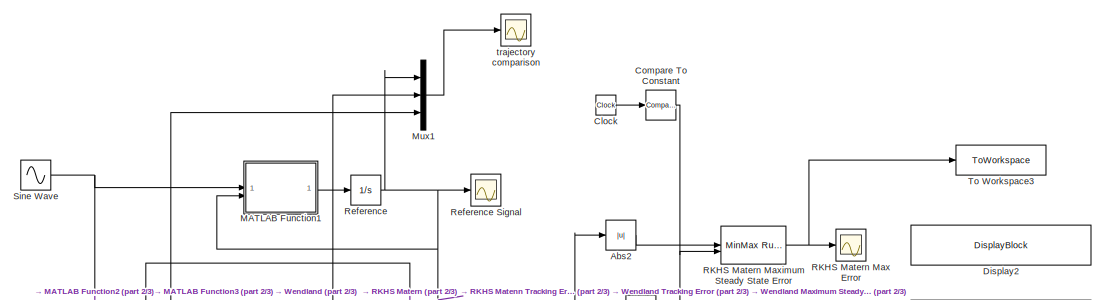
[diagram: root canvas - part 1/3, full width, top band]
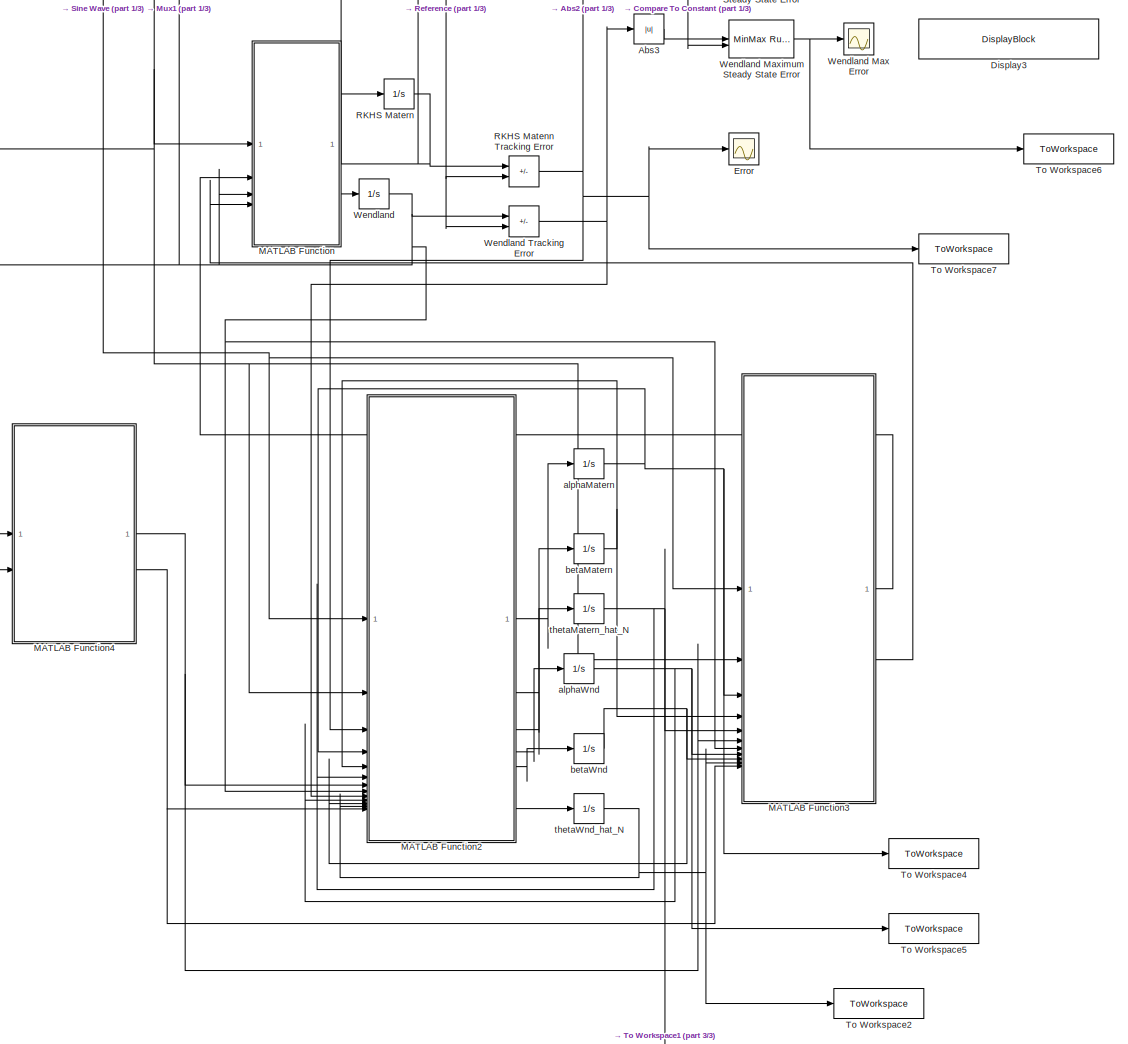
[diagram: root canvas - part 2/3, most of the canvas]
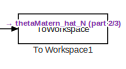
[diagram: root canvas - part 3/3, bottom right region]
MODEL slx_f2626c847e4a
KIND model
CONFIG AbsTol = auto
CONFIG EnableMultiTasking = off
CONFIG FixedStep = auto
CONFIG MaxStep = auto
CONFIG MinStep = auto
CONFIG RelTol = 1e-3
CONFIG SampleTimeConstraint = Unconstrained
CONFIG SolverName = ode45
CONFIG StartTime = 0.0
CONFIG StopTime = 30
BLOCK [Abs] Abs2
  SaturateOnIntegerOverflow = off
BLOCK [Abs] Abs3
  SaturateOnIntegerOverflow = off
BLOCK [Clock] Clock
  DisplayTime = on
BLOCK [Reference] Compare To Constant  REF=simulink/Logic and Bit
Operations/Compare
To Constant
  SourceBlock = simulink/Logic and Bit\nOperations/Compare\nTo Constant
  SourceType = Compare To Constant
BLOCK [DisplayBlock] Display2
  LabelPosition = Hide
  Transparency = 1
BLOCK [DisplayBlock] Display3
  LabelPosition = Hide
  Transparency = 1
BLOCK [Scope] Error
  Floating = off
  NumInputPorts = 1
  ScopeSpecificationString = Simulink.scopes.TimeScopeBlockCfg('CurrentConfiguration', extmgr.ConfigurationSet(extmgr.Configuration('Core','General UI',true,'FigureColor',[1 1 1]),extmgr.Configuration('Core','Source UI',true),extmgr.Configuration('Sources','WiredSimulink',true,'DataLoggingVariableName','ScopeData1'),extmgr.Configuration('Visuals','Time Domain',true,'SerializedDisplays',{struct('MinYLimReal','-2.41007','MaxYLi...<+1990ch>
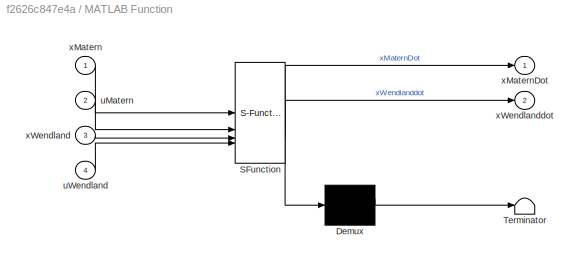
BLOCK [SubSystem] MATLAB Function
  ErrorFcn = Stateflow.Translate.translate
  PermitHierarchicalResolution = ExplicitOnly
  SFBlockType = MATLAB Function
  TreatAsAtomicUnit = on
BLOCK [Demux] MATLAB Function/ Demux 
  Outputs = 1
BLOCK [S-Function] MATLAB Function/ SFunction 
  EnableBusSupport = on
  FunctionName = sf_sfun
  Parameters = astar,bstar
  PortCounts = [4 3]
  SFcnIsStateOwnerBlock = off
  SFunctionDeploymentMode = off
  Tag = Stateflow S-Function 2
BLOCK [Terminator] MATLAB Function/ Terminator 
BLOCK [Inport] MATLAB Function/uMatern
  Port = 2
BLOCK [Inport] MATLAB Function/uWendland
  Port = 4
BLOCK [Inport] MATLAB Function/xMatern
BLOCK [Outport] MATLAB Function/xMaternDot
BLOCK [Inport] MATLAB Function/xWendland
  Port = 3
BLOCK [Outport] MATLAB Function/xWendlanddot
  Port = 2
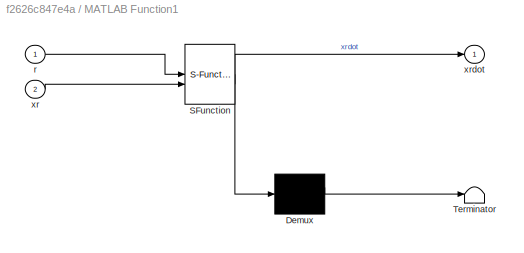
BLOCK [SubSystem] MATLAB Function1
  ErrorFcn = Stateflow.Translate.translate
  PermitHierarchicalResolution = ExplicitOnly
  SFBlockType = MATLAB Function
  TreatAsAtomicUnit = on
BLOCK [Demux] MATLAB Function1/ Demux 
  Outputs = 1
BLOCK [S-Function] MATLAB Function1/ SFunction 
  EnableBusSupport = on
  FunctionName = sf_sfun
  Parameters = ar,br
  PortCounts = [2 2]
  SFcnIsStateOwnerBlock = off
  SFunctionDeploymentMode = off
  Tag = Stateflow S-Function 1
BLOCK [Terminator] MATLAB Function1/ Terminator 
BLOCK [Inport] MATLAB Function1/r
BLOCK [Inport] MATLAB Function1/xr
  Port = 2
BLOCK [Outport] MATLAB Function1/xrdot
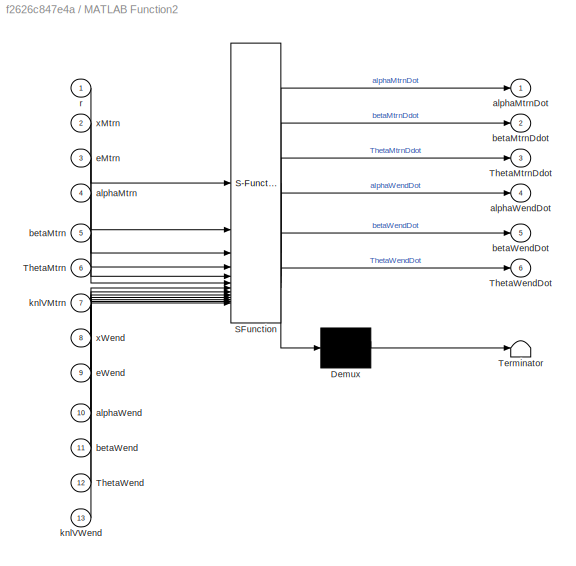
BLOCK [SubSystem] MATLAB Function2
  ErrorFcn = Stateflow.Translate.translate
  PermitHierarchicalResolution = ExplicitOnly
  SFBlockType = MATLAB Function
  TreatAsAtomicUnit = on
BLOCK [Demux] MATLAB Function2/ Demux 
  Outputs = 1
BLOCK [S-Function] MATLAB Function2/ SFunction 
  EnableBusSupport = on
  FunctionName = sf_sfun
  Parameters = ga,gb,gf,invKMtrn,invKWend,sigma
  PortCounts = [13 7]
  SFcnIsStateOwnerBlock = off
  SFunctionDeploymentMode = off
  Tag = Stateflow S-Function 3
BLOCK [Terminator] MATLAB Function2/ Terminator 
BLOCK [Inport] MATLAB Function2/ThetaMtrn
  Port = 6
BLOCK [Outport] MATLAB Function2/ThetaMtrnDdot
  Port = 3
BLOCK [Inport] MATLAB Function2/ThetaWend
  Port = 12
BLOCK [Outport] MATLAB Function2/ThetaWendDot
  Port = 6
BLOCK [Inport] MATLAB Function2/alphaMtrn
  Port = 4
BLOCK [Outport] MATLAB Function2/alphaMtrnDot
BLOCK [Inport] MATLAB Function2/alphaWend
  Port = 10
BLOCK [Outport] MATLAB Function2/alphaWendDot
  Port = 4
BLOCK [Inport] MATLAB Function2/betaMtrn
  Port = 5
BLOCK [Outport] MATLAB Function2/betaMtrnDdot
  Port = 2
BLOCK [Inport] MATLAB Function2/betaWend
  Port = 11
BLOCK [Outport] MATLAB Function2/betaWendDot
  Port = 5
BLOCK [Inport] MATLAB Function2/eMtrn
  Port = 3
BLOCK [Inport] MATLAB Function2/eWend
  Port = 9
BLOCK [Inport] MATLAB Function2/knlVMtrn
  Port = 7
BLOCK [Inport] MATLAB Function2/knlVWend
  Port = 13
BLOCK [Inport] MATLAB Function2/r
BLOCK [Inport] MATLAB Function2/xMtrn
  Port = 2
BLOCK [Inport] MATLAB Function2/xWend
  Port = 8
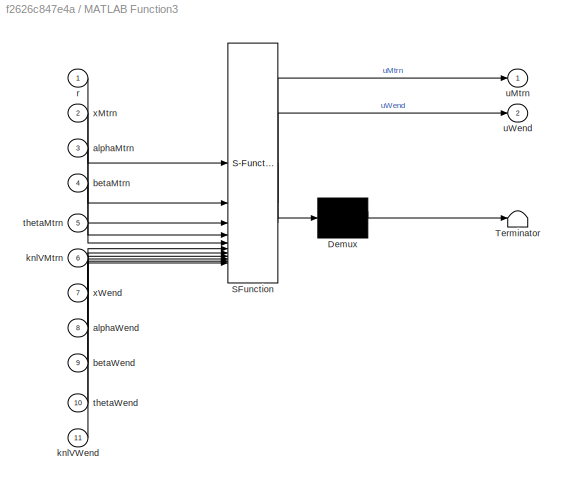
BLOCK [SubSystem] MATLAB Function3
  ErrorFcn = Stateflow.Translate.translate
  PermitHierarchicalResolution = ExplicitOnly
  SFBlockType = MATLAB Function
  TreatAsAtomicUnit = on
BLOCK [Demux] MATLAB Function3/ Demux 
  Outputs = 1
BLOCK [S-Function] MATLAB Function3/ SFunction 
  EnableBusSupport = on
  FunctionName = sf_sfun
  PortCounts = [11 3]
  SFcnIsStateOwnerBlock = off
  SFunctionDeploymentMode = off
  Tag = Stateflow S-Function 4
BLOCK [Terminator] MATLAB Function3/ Terminator 
BLOCK [Inport] MATLAB Function3/alphaMtrn
  Port = 3
BLOCK [Inport] MATLAB Function3/alphaWend
  Port = 8
BLOCK [Inport] MATLAB Function3/betaMtrn
  Port = 4
BLOCK [Inport] MATLAB Function3/betaWend
  Port = 9
BLOCK [Inport] MATLAB Function3/knlVMtrn
  Port = 6
BLOCK [Inport] MATLAB Function3/knlVWend
  Port = 11
BLOCK [Inport] MATLAB Function3/r
BLOCK [Inport] MATLAB Function3/thetaMtrn
  Port = 5
BLOCK [Inport] MATLAB Function3/thetaWend
  Port = 10
BLOCK [Outport] MATLAB Function3/uMtrn
BLOCK [Outport] MATLAB Function3/uWend
  Port = 2
BLOCK [Inport] MATLAB Function3/xMtrn
  Port = 2
BLOCK [Inport] MATLAB Function3/xWend
  Port = 7
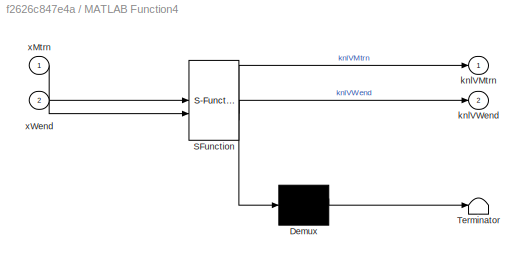
BLOCK [SubSystem] MATLAB Function4
  ErrorFcn = Stateflow.Translate.translate
  PermitHierarchicalResolution = ExplicitOnly
  SFBlockType = MATLAB Function
  TreatAsAtomicUnit = on
BLOCK [Demux] MATLAB Function4/ Demux 
  Outputs = 1
BLOCK [S-Function] MATLAB Function4/ SFunction 
  EnableBusSupport = on
  FunctionName = sf_sfun
  Parameters = centers,hyperMtrn,hyperWend,nu,sig
  PortCounts = [2 3]
  SFcnIsStateOwnerBlock = off
  SFunctionDeploymentMode = off
  Tag = Stateflow S-Function 5
BLOCK [Terminator] MATLAB Function4/ Terminator 
BLOCK [Outport] MATLAB Function4/knlVMtrn
BLOCK [Outport] MATLAB Function4/knlVWend
  Port = 2
BLOCK [Inport] MATLAB Function4/xMtrn
BLOCK [Inport] MATLAB Function4/xWend
  Port = 2
BLOCK [Mux] Mux1
  DisplayOption = bar
  Inputs = 3
BLOCK [Sum] RKHS Matenn Tracking Error
  IconShape = rectangular
  Inputs = +-
BLOCK [Integrator] RKHS Matern
  InitialCondition = x0
BLOCK [Scope] RKHS Matern Max Error
  Floating = off
  NumInputPorts = 1
  ScopeSpecificationString = Simulink.scopes.TimeScopeBlockCfg('CurrentConfiguration', extmgr.ConfigurationSet(extmgr.Configuration('Core','General UI',true),extmgr.Configuration('Core','Source UI',true),extmgr.Configuration('Sources','WiredSimulink',true,'DataLoggingVariableName','ScopeData3'),extmgr.Configuration('Visuals','Time Domain',true,'SerializedDisplays',{struct('MinYLimReal','-1.53696','MaxYLimReal','2.36845','YLab...<+1506ch>
BLOCK [Reference] RKHS Matern Maximum Steady State Error  REF=simulink/Math
Operations/MinMax
Running
Resettable
  SourceBlock = simulink/Math\nOperations/MinMax\nRunning\nResettable
  SourceType = MinMax Running Resettable
BLOCK [Integrator] Reference
  InitialCondition = xr0
BLOCK [Scope] Reference Signal
  Floating = off
  NumInputPorts = 1
  ScopeSpecificationString = Simulink.scopes.TimeScopeBlockCfg('CurrentConfiguration', extmgr.ConfigurationSet(extmgr.Configuration('Core','General UI',true,'FigureColor',[1 1 1]),extmgr.Configuration('Core','Source UI',true),extmgr.Configuration('Sources','WiredSimulink',true,'DataLoggingVariableName','ScopeData1'),extmgr.Configuration('Visuals','Time Domain',true,'SerializedDisplays',{struct('MinYLimReal','-12.43782','MaxYL...<+1948ch>
BLOCK [Sin] Sine Wave
  Amplitude = 10
  Frequency = 2*pi
  SampleTime = 0
BLOCK [ToWorkspace] To Workspace1
  FixptAsFi = on
  MaxDataPoints = inf
  SampleTime = -1
  SaveFormat = Timeseries
  VariableName = ThetaMatern
BLOCK [ToWorkspace] To Workspace2
  FixptAsFi = on
  MaxDataPoints = inf
  SampleTime = -1
  SaveFormat = Timeseries
  VariableName = ThetaWendland
BLOCK [ToWorkspace] To Workspace3
  FixptAsFi = on
  MaxDataPoints = inf
  SampleTime = -1
  SaveFormat = Timeseries
  VariableName = ssErrorMatern
BLOCK [ToWorkspace] To Workspace4
  FixptAsFi = on
  MaxDataPoints = inf
  SampleTime = -1
  SaveFormat = Timeseries
  VariableName = AlphaMatern
BLOCK [ToWorkspace] To Workspace5
  FixptAsFi = on
  MaxDataPoints = inf
  SampleTime = -1
  SaveFormat = Timeseries
  VariableName = AlphaWendland
BLOCK [ToWorkspace] To Workspace6
  FixptAsFi = on
  MaxDataPoints = inf
  SampleTime = -1
  SaveFormat = Timeseries
  VariableName = ssErrorWendland
BLOCK [ToWorkspace] To Workspace7
  FixptAsFi = on
  MaxDataPoints = inf
  SampleTime = -1
  SaveFormat = Timeseries
  VariableName = Matern_error
BLOCK [Integrator] Wendland
  InitialCondition = x0
BLOCK [Scope] Wendland Max Error
  Floating = off
  NumInputPorts = 1
  ScopeSpecificationString = Simulink.scopes.TimeScopeBlockCfg('CurrentConfiguration', extmgr.ConfigurationSet(extmgr.Configuration('Core','General UI',true),extmgr.Configuration('Core','Source UI',true),extmgr.Configuration('Sources','WiredSimulink',true,'DataLoggingVariableName','ScopeData4'),extmgr.Configuration('Visuals','Time Domain',true,'SerializedDisplays',{struct('MinYLimReal','-1.53696','MaxYLimReal','2.36845','YLab...<+1506ch>
BLOCK [Reference] Wendland Maximum Steady State Error  REF=simulink/Math
Operations/MinMax
Running
Resettable
  SourceBlock = simulink/Math\nOperations/MinMax\nRunning\nResettable
  SourceType = MinMax Running Resettable
BLOCK [Sum] Wendland Tracking Error
  IconShape = rectangular
  Inputs = +-
BLOCK [Integrator] alphaMatern
  InitialCondition = alpha0
BLOCK [Integrator] alphaWnd
  InitialCondition = alpha0
BLOCK [Integrator] betaMatern
  InitialCondition = beta0
BLOCK [Integrator] betaWnd
  InitialCondition = beta0
BLOCK [Integrator] thetaMatern_hat_N
BLOCK [Integrator] thetaWnd_hat_N
BLOCK [Scope] trajectory comparison
  Floating = off
  NumInputPorts = 1
  ScopeSpecificationString = Simulink.scopes.TimeScopeBlockCfg('CurrentConfiguration', extmgr.ConfigurationSet(extmgr.Configuration('Core','General UI',true,'FigureColor',[1 1 1]),extmgr.Configuration('Core','Source UI',true),extmgr.Configuration('Sources','WiredSimulink',true,'DataLoggingVariableName','ScopeData1'),extmgr.Configuration('Visuals','Time Domain',true,'SerializedDisplays',{struct('MinYLimReal','-12.94159','MaxYL...<+2040ch>
LINE Abs2:1 -> RKHS Matern Maximum Steady State Error:1
LINE Abs3:1 -> Wendland Maximum Steady State Error:1
LINE Clock:1 -> Compare To Constant:1
NET Compare To Constant:1 -> RKHS Matern Maximum Steady State Error:2, Wendland Maximum Steady State Error:2
LINE MATLAB Function1:1 -> Reference:1
LINE MATLAB Function2:1 -> alphaMatern:1
LINE MATLAB Function2:2 -> betaMatern:1
LINE MATLAB Function2:3 -> thetaMatern_hat_N:1
LINE MATLAB Function2:4 -> alphaWnd:1
LINE MATLAB Function2:5 -> betaWnd:1
LINE MATLAB Function2:6 -> thetaWnd_hat_N:1
LINE MATLAB Function3:1 -> MATLAB Function:2
LINE MATLAB Function3:2 -> MATLAB Function:4
NET MATLAB Function4:1 -> MATLAB Function2:7, MATLAB Function3:6
NET MATLAB Function4:2 -> MATLAB Function2:13, MATLAB Function3:11
LINE MATLAB Function:1 -> RKHS Matern:1
LINE MATLAB Function:2 -> Wendland:1
LINE Mux1:1 -> trajectory comparison:1
NET RKHS Matenn Tracking Error:1 -> Abs2:1, Error:1, MATLAB Function2:3, To Workspace7:1
NET RKHS Matern Maximum Steady State Error:1 -> RKHS Matern Max Error:1, To Workspace3:1
NET RKHS Matern:1 -> MATLAB Function2:2, MATLAB Function3:2, MATLAB Function4:1, MATLAB Function:1, Mux1:2, RKHS Matenn Tracking Error:1
NET Reference:1 -> MATLAB Function1:2, Mux1:1, RKHS Matenn Tracking Error:2, Reference Signal:1, Wendland Tracking Error:2
NET Sine Wave:1 -> MATLAB Function1:1, MATLAB Function2:1, MATLAB Function3:1
NET Wendland Maximum Steady State Error:1 -> To Workspace6:1, Wendland Max Error:1
NET Wendland Tracking Error:1 -> Abs3:1, MATLAB Function2:9
NET Wendland:1 -> MATLAB Function2:8, MATLAB Function3:7, MATLAB Function4:2, MATLAB Function:3, Mux1:3, Wendland Tracking Error:1
NET alphaMatern:1 -> MATLAB Function2:4, MATLAB Function3:3, To Workspace4:1
NET alphaWnd:1 -> MATLAB Function2:10, MATLAB Function3:8, To Workspace5:1
NET betaMatern:1 -> MATLAB Function2:5, MATLAB Function3:4
NET betaWnd:1 -> MATLAB Function2:11, MATLAB Function3:9
NET thetaMatern_hat_N:1 -> MATLAB Function2:6, MATLAB Function3:5, To Workspace1:1
NET thetaWnd_hat_N:1 -> MATLAB Function2:12, MATLAB Function3:10, To Workspace2:1
note: NET lines group one-source signal fan-out (src -> all destinations, sorted); 1:1 wires keep LINE
CHART MATLAB Function3 states=1 transitions=1
  STATE_LABEL 'eML_blk_kernel()'
  STATE_LABEL "SCRIPT:\nfunction [uMtrn, uWend]= controller(r, xMtrn,alphaMtrn,betaMtrn, thetaMtrn,knlVMtrn, xWend,alphaWend,betaWend, thetaWend,knlVWend)\n\n% Matern 3/2\nuMtrn = alphaMtrn*xMtrn+betaMtrn*r-thetaMtrn'*knlVMtrn;\n% u3m = beta3m*r-theta3m'*knl_x3m;\n% Matern 5/2\nuWend = alphaWend*xWend+betaWend*r-thetaWend'*knlVWend;\n% u5m = beta5m*r-theta5m'*knl_x5m;"
CHART MATLAB Function4 states=1 transitions=1
  STATE_LABEL 'eML_blk_kernel()'
  STATE_LABEL 'SCRIPT:\nfunction [knlVMtrn,knlVWend] = Knl_Eval(xMtrn,xWend,centers,hyperMtrn,sig,nu, hyperWend)\n\n\n% knlfun3m=@(x,bsc) sig^2.*(1+sqrt(3)./hyper.*abs(x-bsc)).*exp(-sqrt(3).*abs(x-bsc)./hyper);\n% knlfun5m=@(x,bsc) sig^2.*(1+sqrt(5)/hyperMatern.*abs(x-bsc)+5/(3*hyperMatern^2).*abs(x-bsc).^2).*exp(-sqrt(5).*abs(x-bsc)./hyperMatern);\n\nknlfuncMtrn=@(r) real(sig^2*2^(1-nu)/gamma(nu)*(sqrt(2*nu)*r/hyperMt...<+503ch>'
CHART MATLAB Function1 states=1 transitions=1
  STATE_LABEL 'eML_blk_kernel()'
  STATE_LABEL 'SCRIPT:\nfunction xrdot = reference(r,xr,ar, br)\n\nxrdot = ar*xr+br*r;\n'
CHART MATLAB Function states=1 transitions=1
  STATE_LABEL 'eML_blk_kernel()'
  STATE_LABEL 'SCRIPT:\nfunction [xMaternDot,xWendlanddot] = plant(xMatern,uMatern,xWendland,uWendland,astar, bstar)\n\n\nxMaternDot = astar*xMatern+bstar*(uMatern+10*tanh(xMatern));\nxWendlanddot = astar*xWendland+bstar*(uWendland+10*tanh(xWendland));\n'
CHART MATLAB Function2 states=1 transitions=1
  STATE_LABEL 'eML_blk_kernel()'
  STATE_LABEL 'SCRIPT:\nfunction [alphaMtrnDot, betaMtrnDdot, ThetaMtrnDdot, alphaWendDot, betaWendDot, ThetaWendDot] = evo_law(ga, gb, gf, sigma, r, xMtrn, eMtrn, alphaMtrn, betaMtrn, ThetaMtrn, knlVMtrn, xWend, eWend, alphaWend, betaWend, ThetaWend, knlVWend, invKMtrn, invKWend)\n\n%% Matern Standard RKHS\nalphaMtrnDot=-ga*xMtrn*eMtrn-sigma*alphaMtrn;\nbetaMtrnDdot=-gb*r*eMtrn-sigma*betaMtrn;\nThetaMtrnDdot=gf*invKM...<+208ch>'
CHART  states=0 transitions=0
CHART  states=0 transitions=0
CHART  states=0 transitions=0
CHART  states=0 transitions=0
CHART  states=0 transitions=0
